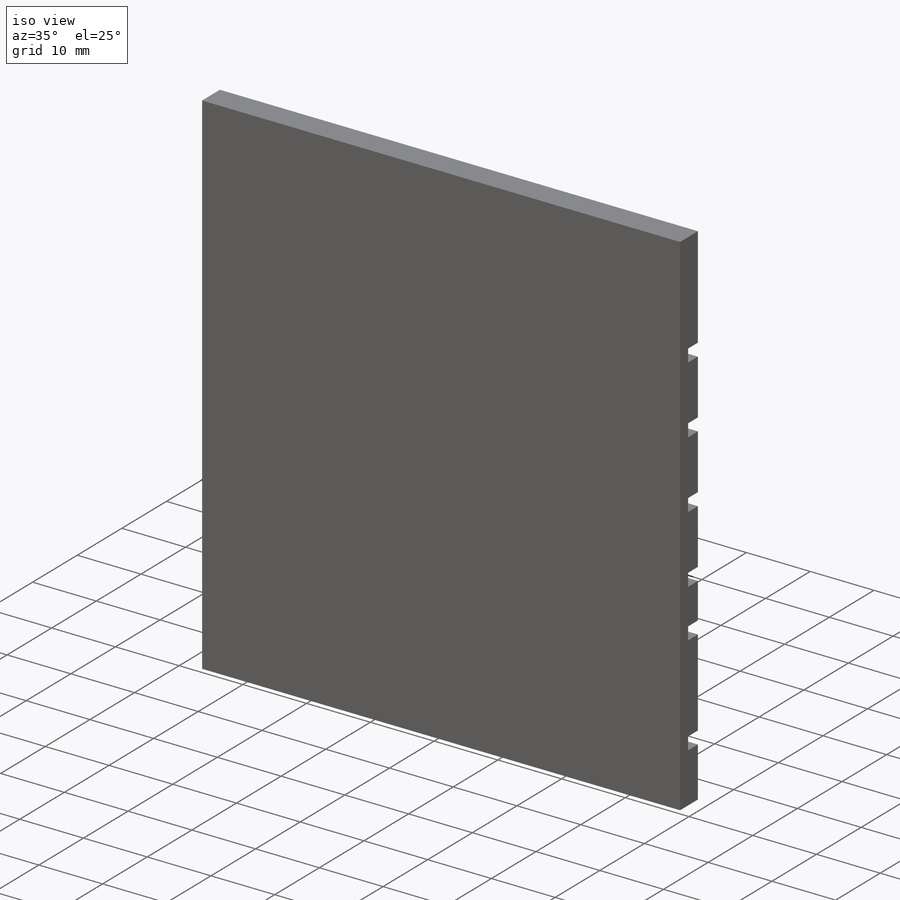
[diagram: iso view]
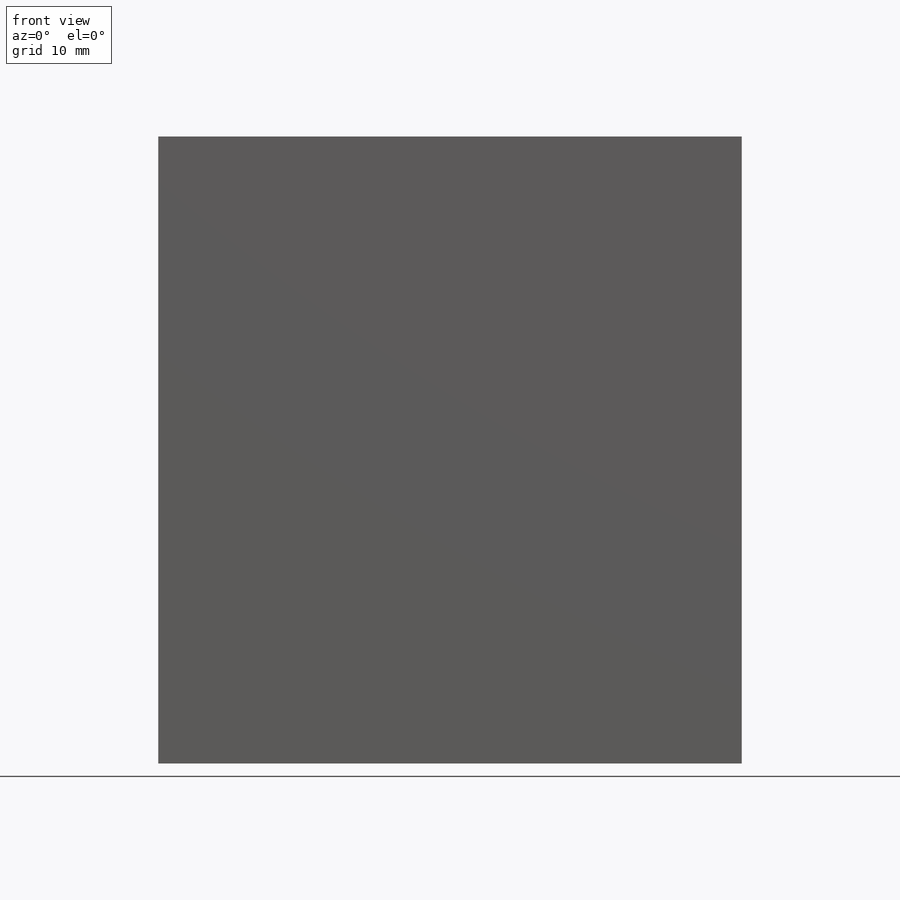
[diagram: front view]
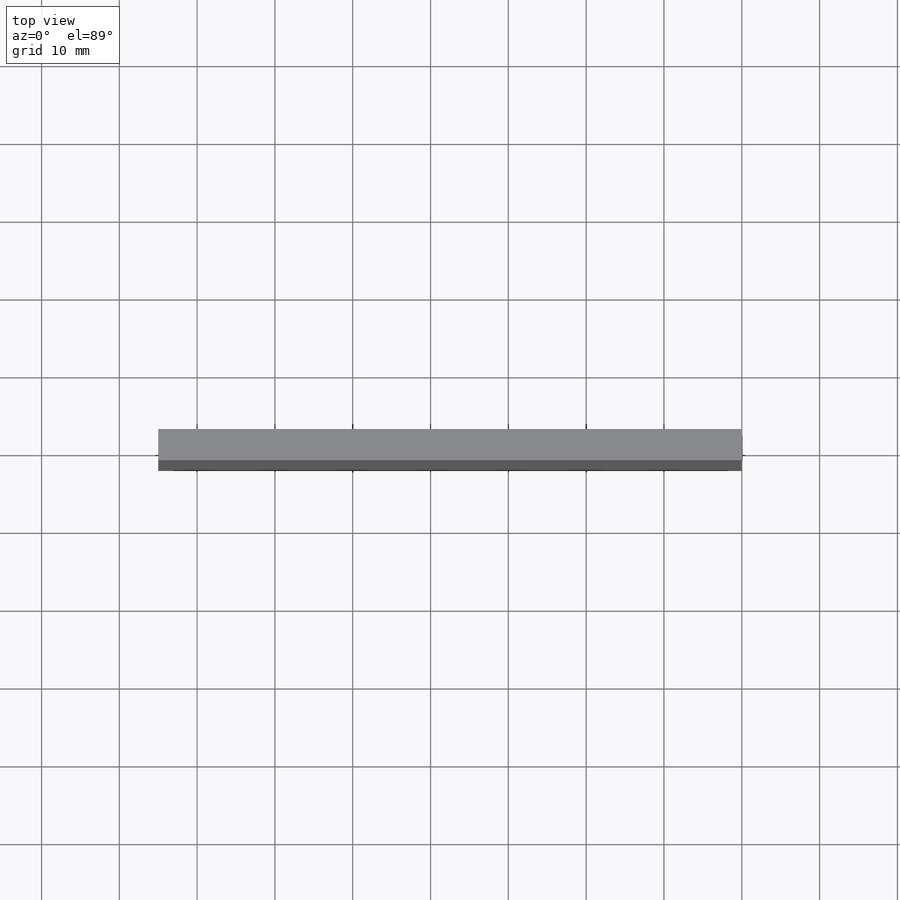
[diagram: top view]
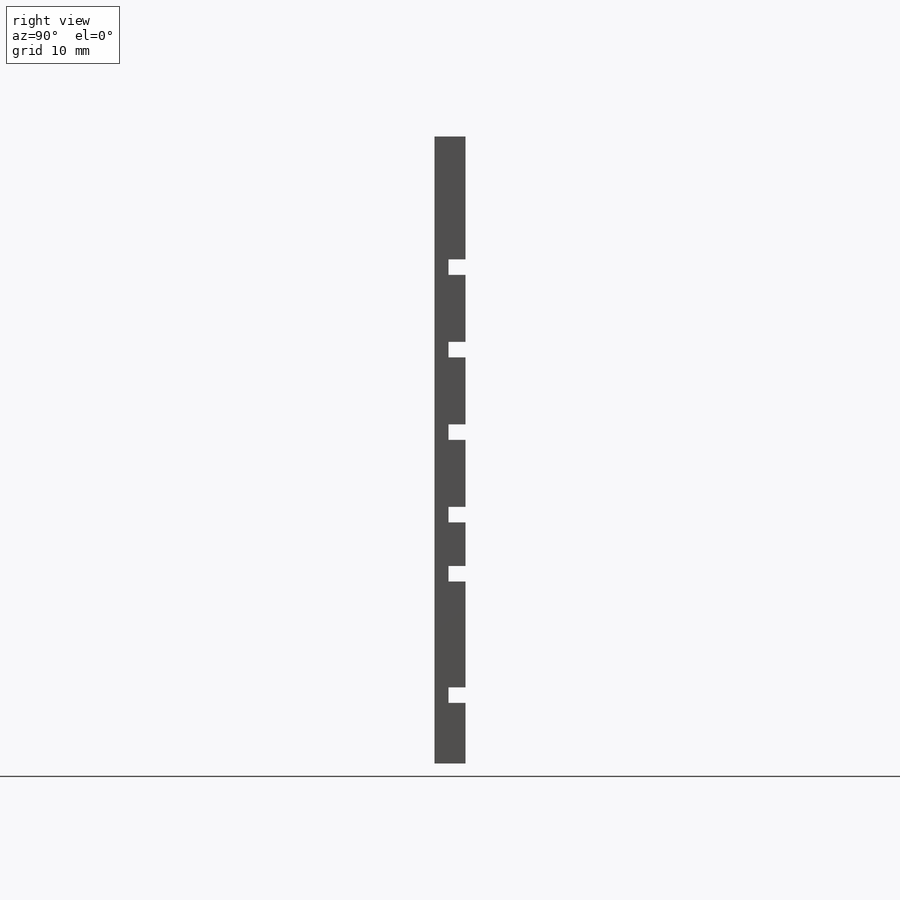
[diagram: right view]
SOLIDWORKS PART (.sldprt)
format: sldprt  version: not decoded by parser v0  size: 300,032 bytes
history: native  units: mm
features: extrude x4, sketch x3, cut_extrude x2, material x1, plane x1 (+11 scaffold rows collapsed)
feature tree (22):
  scaffold x11  (default folders/planes/origin — collapsed)
  material  "Material <not specified>"
  plane  "left"  Offset=2mm
  sketch  "Sketch1"
  extrude  "Boss-Extrude1"  Depth=4.7625mm
  extrude  "Indent2"  Depth=10mm
  extrude  "Indent3"  Depth=10mm
  extrude  "Indent4"  Depth=10mm
  sketch  "Sketch2"
  cut_extrude  "Cut-Extrude1"  Depth=6.35mm
  sketch  "Sketch3"
  cut_extrude  "Cut-Extrude2"  Depth=2.35mm
decode coverage: 6 of 9 modeling features carry decoded parameters
note: suppression state not decoded; provenance and decode notes live in map.json
